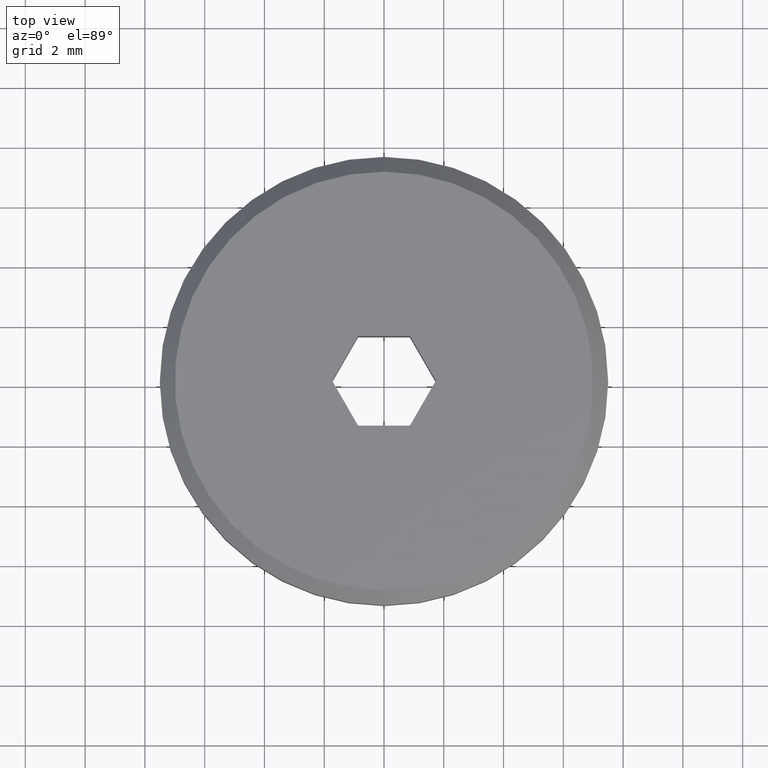
[diagram: clean part render]
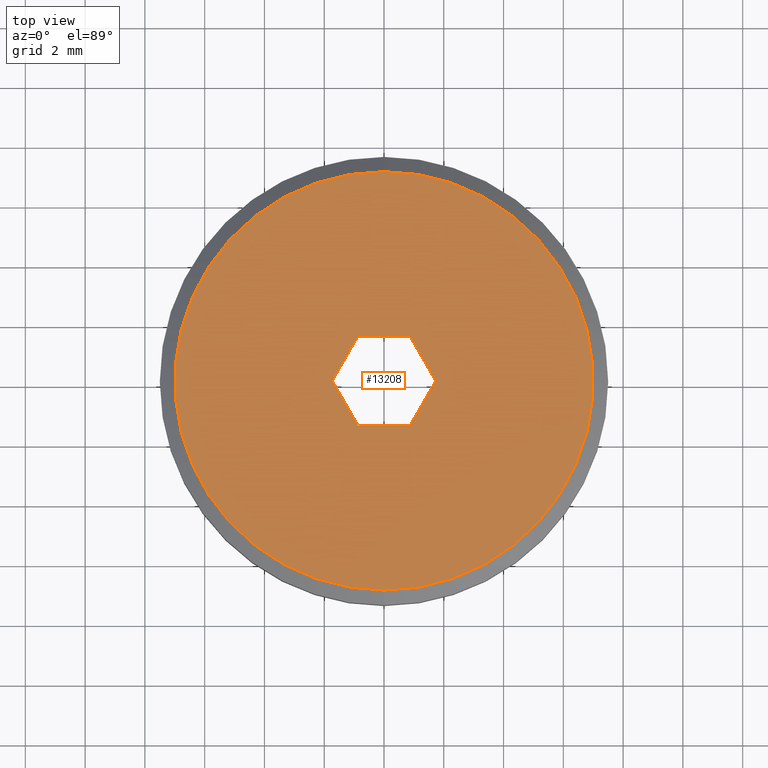
[diagram: same view with one face highlighted and labeled with its STEP entity id]
A machine part, top view. The second image highlights one B-rep face of the part: STEP entity #13208.
In plain terms, the highlighted planar face has unit normal (0, -0, 1).
Its self-contained STEP definition (entity closure, byte-faithful):
#114 = LINE ( 'NONE', #11381, #14241 ) ;
#732 = VERTEX_POINT ( 'NONE', #14130 ) ;
#802 = CARTESIAN_POINT ( 'NONE',  ( 0.8660254037844380400, -1.500000000000000000, 6.100000000000000500 ) ) ;
#873 = ORIENTED_EDGE ( 'NONE', *, *, #1471, .T. ) ;
#1040 = VECTOR ( 'NONE', #12713, 1000.000000000000000 ) ;
#1238 = DIRECTION ( 'NONE',  ( 0.0000000000000000000, -1.000000000000000000, -3.717264591378871700E-016 ) ) ;
#1471 = EDGE_CURVE ( 'NONE', #16173, #13388, #4817, .T. ) ;
#1559 = VERTEX_POINT ( 'NONE', #4124 ) ;
#1646 = LINE ( 'NONE', #10687, #13755 ) ;
#1673 = CIRCLE ( 'NONE', #6494, 7.000000000000000900 ) ;
#1687 = CARTESIAN_POINT ( 'NONE',  ( -1.732050807568877600, 3.038896159204408000E-016, 6.100000000000000500 ) ) ;
#1836 = DIRECTION ( 'NONE',  ( 1.000000000000000000, -1.251928832280966700E-016, 0.0000000000000000000 ) ) ;
#2157 = CARTESIAN_POINT ( 'NONE',  ( 0.8660254037844382600, -1.500000000000000000, 6.100000000000000500 ) ) ;
#2484 = FACE_BOUND ( 'NONE', #9861, .T. ) ;
#2769 = CARTESIAN_POINT ( 'NONE',  ( -0.8660254037844389300, 1.499999999999999600, 6.100000000000000500 ) ) ;
#2794 = VERTEX_POINT ( 'NONE', #2769 ) ;
#2907 = CARTESIAN_POINT ( 'NONE',  ( 0.0000000000000000000, -1.255262969126036600E-015, 6.100000000000000500 ) ) ;
#3022 = LINE ( 'NONE', #4743, #1040 ) ;
#3127 = VERTEX_POINT ( 'NONE', #6763 ) ;
#3779 = CARTESIAN_POINT ( 'NONE',  ( 0.0000000000000000000, -1.255262969126036500E-015, 6.100000000000000500 ) ) ;
#3919 = LINE ( 'NONE', #8079, #13677 ) ;
#3969 = ORIENTED_EDGE ( 'NONE', *, *, #16343, .T. ) ;
#4124 = CARTESIAN_POINT ( 'NONE',  ( -0.8660254037844383700, -1.499999999999999800, 6.100000000000000500 ) ) ;
#4533 = EDGE_CURVE ( 'NONE', #732, #11248, #114, .T. ) ;
#4590 = VERTEX_POINT ( 'NONE', #2157 ) ;
#4734 = CARTESIAN_POINT ( 'NONE',  ( 0.0000000000000000000, 7.000000000000000000, 6.100000000000003200 ) ) ;
#4743 = CARTESIAN_POINT ( 'NONE',  ( 0.8660254037844382600, 1.499999999999999100, 6.100000000000000500 ) ) ;
#4817 = CIRCLE ( 'NONE', #6944, 7.000000000000000900 ) ;
#5426 = EDGE_CURVE ( 'NONE', #3127, #1559, #15624, .T. ) ;
#6494 = AXIS2_PLACEMENT_3D ( 'NONE', #3779, #8838, #1238 ) ;
#6751 = DIRECTION ( 'NONE',  ( 0.0000000000000000000, -1.000000000000000000, -3.466407542334334500E-016 ) ) ;
#6763 = CARTESIAN_POINT ( 'NONE',  ( -1.732050807568877600, 3.038896159204408000E-016, 6.100000000000000500 ) ) ;
#6944 = AXIS2_PLACEMENT_3D ( 'NONE', #9711, #10785, #9544 ) ;
#8079 = CARTESIAN_POINT ( 'NONE',  ( -0.8660254037844389300, 1.499999999999999600, 6.100000000000000500 ) ) ;
#8420 = EDGE_LOOP ( 'NONE', ( #3969, #873 ) ) ;
#8584 = ORIENTED_EDGE ( 'NONE', *, *, #8636, .F. ) ;
#8636 = EDGE_CURVE ( 'NONE', #11248, #2794, #3022, .T. ) ;
#8712 = ORIENTED_EDGE ( 'NONE', *, *, #11196, .F. ) ;
#8838 = DIRECTION ( 'NONE',  ( 0.0000000000000000000, -3.466407542334334500E-016, 1.000000000000000000 ) ) ;
#8922 = ORIENTED_EDGE ( 'NONE', *, *, #4533, .F. ) ;
#9282 = DIRECTION ( 'NONE',  ( 0.5000000000000003300, -0.8660254037844384900, 0.0000000000000000000 ) ) ;
#9392 = ORIENTED_EDGE ( 'NONE', *, *, #5426, .F. ) ;
#9544 = DIRECTION ( 'NONE',  ( 0.0000000000000000000, -1.000000000000000000, -3.717264591378871700E-016 ) ) ;
#9684 = CARTESIAN_POINT ( 'NONE',  ( 0.8660254037844382600, 1.499999999999999100, 6.100000000000000500 ) ) ;
#9711 = CARTESIAN_POINT ( 'NONE',  ( 0.0000000000000000000, -1.255262969126036500E-015, 6.100000000000000500 ) ) ;
#9861 = EDGE_LOOP ( 'NONE', ( #14690, #9392, #8712, #8584, #8922, #15358 ) ) ;
#9977 = VECTOR ( 'NONE', #13591, 1000.000000000000200 ) ;
#10648 = DIRECTION ( 'NONE',  ( -0.5000000000000001100, -0.8660254037844384900, 0.0000000000000000000 ) ) ;
#10661 = DIRECTION ( 'NONE',  ( 0.0000000000000000000, -3.466407542334334500E-016, 1.000000000000000000 ) ) ;
#10687 = CARTESIAN_POINT ( 'NONE',  ( -0.8660254037844383700, -1.499999999999999800, 6.100000000000000500 ) ) ;
#10717 = PLANE ( 'NONE',  #13417 ) ;
#10785 = DIRECTION ( 'NONE',  ( 0.0000000000000000000, -3.466407542334334500E-016, 1.000000000000000000 ) ) ;
#11196 = EDGE_CURVE ( 'NONE', #2794, #3127, #3919, .T. ) ;
#11248 = VERTEX_POINT ( 'NONE', #9684 ) ;
#11381 = CARTESIAN_POINT ( 'NONE',  ( 1.732050807568877000, -2.115287145873185000E-016, 6.100000000000000500 ) ) ;
#11433 = DIRECTION ( 'NONE',  ( -0.5000000000000001100, 0.8660254037844384900, 0.0000000000000000000 ) ) ;
#11864 = FACE_OUTER_BOUND ( 'NONE', #8420, .T. ) ;
#12640 = VECTOR ( 'NONE', #9282, 1000.000000000000100 ) ;
#12713 = DIRECTION ( 'NONE',  ( -1.000000000000000000, 2.503857664561932400E-016, 0.0000000000000000000 ) ) ;
#13208 = ADVANCED_FACE ( 'NONE', ( #11864, #2484 ), #10717, .T. ) ;
#13388 = VERTEX_POINT ( 'NONE', #4734 ) ;
#13417 = AXIS2_PLACEMENT_3D ( 'NONE', #2907, #10661, #6751 ) ;
#13591 = DIRECTION ( 'NONE',  ( 0.5000000000000001100, 0.8660254037844384900, 0.0000000000000000000 ) ) ;
#13677 = VECTOR ( 'NONE', #10648, 1000.000000000000200 ) ;
#13755 = VECTOR ( 'NONE', #1836, 1000.000000000000000 ) ;
#13958 = LINE ( 'NONE', #802, #9977 ) ;
#14014 = EDGE_CURVE ( 'NONE', #1559, #4590, #1646, .T. ) ;
#14130 = CARTESIAN_POINT ( 'NONE',  ( 1.732050807568877000, -2.115287145873185000E-016, 6.100000000000000500 ) ) ;
#14241 = VECTOR ( 'NONE', #11433, 1000.000000000000200 ) ;
#14686 = EDGE_CURVE ( 'NONE', #4590, #732, #13958, .T. ) ;
#14690 = ORIENTED_EDGE ( 'NONE', *, *, #14014, .F. ) ;
#14767 = CARTESIAN_POINT ( 'NONE',  ( 8.878689293818312000E-016, -7.000000000000001800, 6.099999999999997900 ) ) ;
#15358 = ORIENTED_EDGE ( 'NONE', *, *, #14686, .F. ) ;
#15624 = LINE ( 'NONE', #1687, #12640 ) ;
#16173 = VERTEX_POINT ( 'NONE', #14767 ) ;
#16343 = EDGE_CURVE ( 'NONE', #13388, #16173, #1673, .T. ) ;